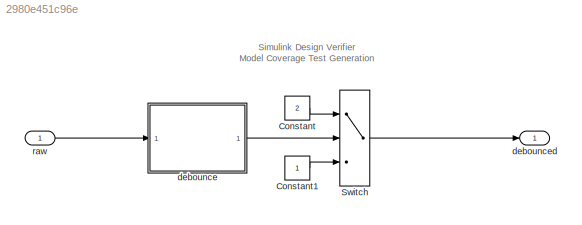
MODEL slx_2980e451c96e
KIND model
CONFIG AbsTol = auto
CONFIG FixedStep = auto
CONFIG MaxStep = auto
CONFIG MinStep = auto
CONFIG RelTol = 1e-3
CONFIG SampleTimeConstraint = Unconstrained
CONFIG Solver = FixedStepDiscrete
CONFIG SolverMode = SingleTasking
CONFIG SolverName = FixedStepDiscrete
CONFIG StartTime = 0.0
CONFIG StopTime = 10.0
BLOCK [Constant] Constant
  OutDataTypeStr = uint8
  Value = 2
BLOCK [Constant] Constant1
  OutDataTypeStr = uint8
BLOCK [Switch] Switch
  Criteria = u2 ~= 0
  InputSameDT = off
  SaturateOnIntegerOverflow = off
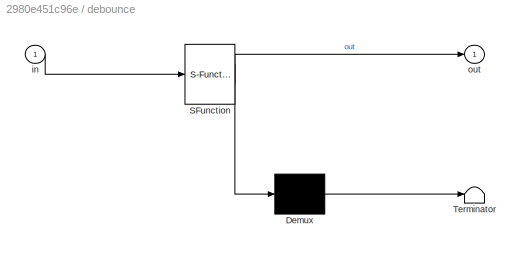
BLOCK [SubSystem] debounce
  ErrorFcn = Stateflow.Translate.translate
  PermitHierarchicalResolution = ExplicitOnly
  Ports = [1, 1]
  RequestExecContextInheritance = off
  SFBlockType = Chart
  TreatAsAtomicUnit = on
  Variant = off
BLOCK [Demux] debounce/ Demux 
  Outputs = 1
  Ports = [1, 1]
BLOCK [S-Function] debounce/ SFunction 
  EnableBusSupport = on
  FunctionName = sf_sfun
  PortCounts = [1 2]
  Ports = [1, 2]
  SFunctionDeploymentMode = off
  Tag = Stateflow S-Function sldv_deadpath 1
BLOCK [Terminator] debounce/ Terminator 
BLOCK [Inport] debounce/in
  IconDisplay = Port number
BLOCK [Outport] debounce/out
  IconDisplay = Port number
BLOCK [Outport] debounced
  IconDisplay = Port number
  OutDataTypeStr = uint8
BLOCK [Inport] raw
  IconDisplay = Port number
  OutDataTypeStr = uint8
ANNOTATION (root): Simulink Design Verifier Model Coverage Test Generation
LINE Constant1:1 -> Switch:3
LINE Constant:1 -> Switch:1
LINE Switch:1 -> debounced:1
LINE debounce:1 -> Switch:2
LINE raw:1 -> debounce:1
CHART debounce states=5 transitions=8
  STATE_LABEL 'Wait'
  STATE_LABEL 'To_on'
  STATE_LABEL 'To_off'
  STATE_LABEL 'To_on'
  STATE_LABEL 'To_off'
  STATE_LABEL 'Off\nout = 0;'
  STATE_LABEL 'On\nout = 1;'
